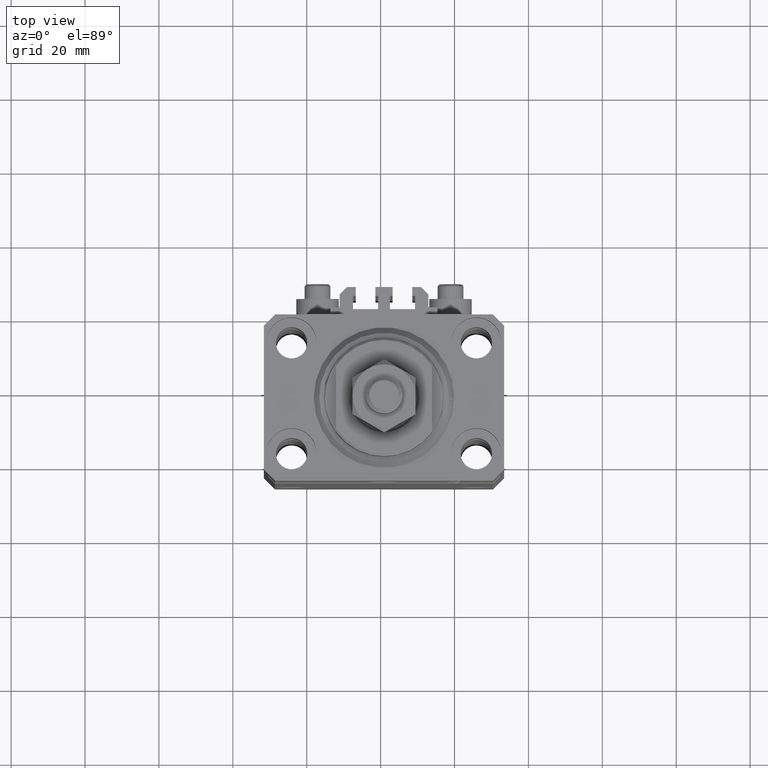
[diagram: clean part render]
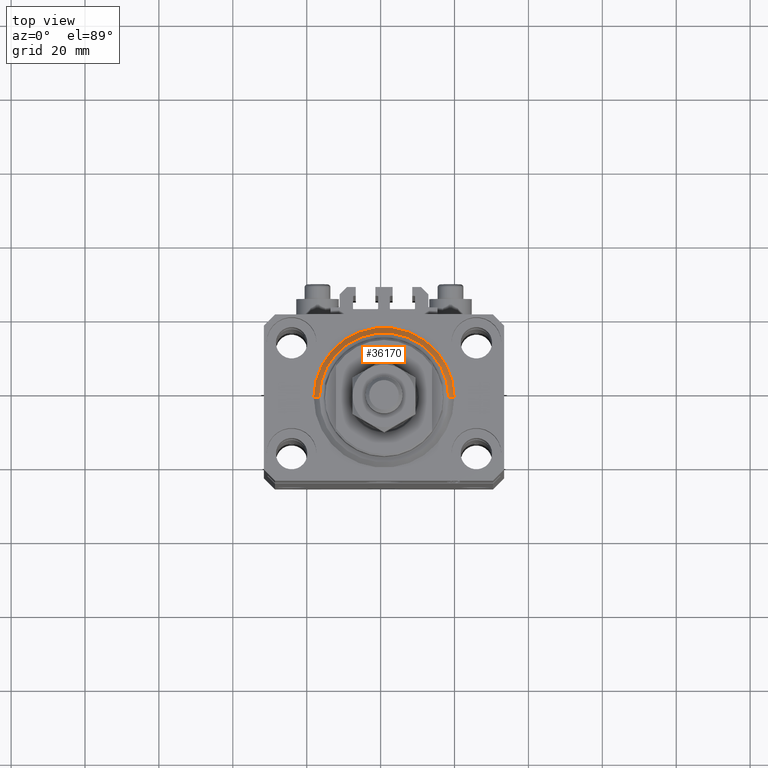
[diagram: same view with one face highlighted and labeled with its STEP entity id]
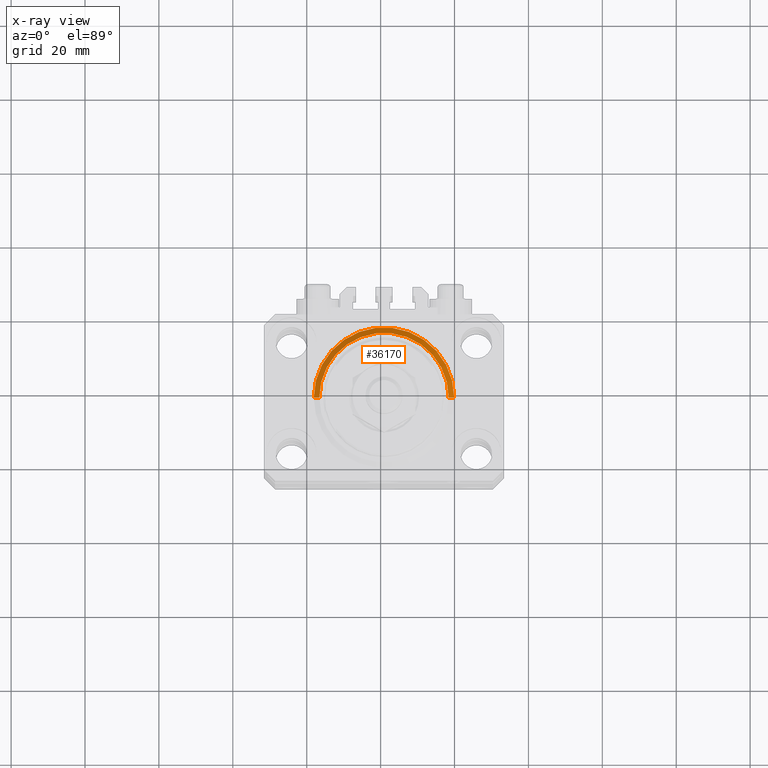
[diagram: x-ray of the same camera — body ghosted, the highlighted face saturated]
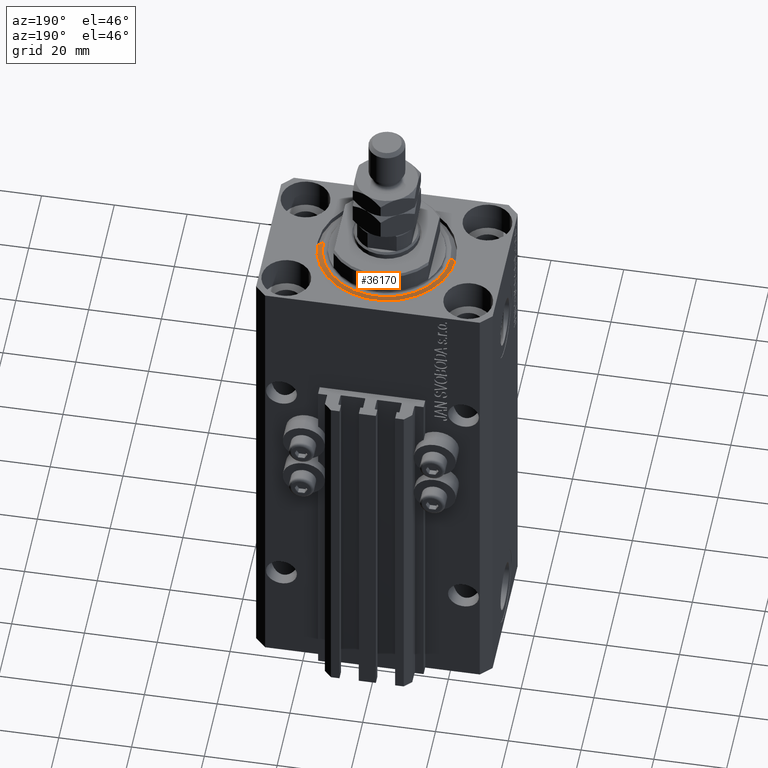
[diagram: same view with one face highlighted and labeled with its STEP entity id]
A machine part, top view. The second image highlights one B-rep face of the part: STEP entity #36170.
The next image is the same camera in x-ray: the body ghosted, the highlighted face saturated — about 0% of this face is hidden behind the body in this view.
A second angle (auxiliary view) of the same face is appended — the face is thin or edge-on in the first view.
In plain terms, the highlighted conical surface has half-angle 45 deg.
Its self-contained STEP definition (entity closure, byte-faithful):
#1157 = CARTESIAN_POINT ( 'NONE',  ( -17.49999999999999289, 2.234980408443919215E-15, 0.000000000000000000 ) ) ;
#1308 = AXIS2_PLACEMENT_3D ( 'NONE', #1404, #47979, #21549 ) ;
#1394 = CARTESIAN_POINT ( 'NONE',  ( 19.00000000000000000, 2.326828918379970970E-15, 1.500000000000004885 ) ) ;
#1404 = CARTESIAN_POINT ( 'NONE',  ( 0.000000000000000000, 0.000000000000000000, 1.500000000000004885 ) ) ;
#7493 = VERTEX_POINT ( 'NONE', #1157 ) ;
#7576 = VECTOR ( 'NONE', #18408, 1000.000000000000000 ) ;
#8451 = CIRCLE ( 'NONE', #43024, 17.49999999999999289 ) ;
#8600 = CARTESIAN_POINT ( 'NONE',  ( 17.49999999999999289, 0.000000000000000000, 0.000000000000000000 ) ) ;
#10811 = EDGE_CURVE ( 'NONE', #25104, #26211, #37685, .T. ) ;
#11940 = DIRECTION ( 'NONE',  ( -0.7071067811865483499, 8.659560562354943952E-17, 0.7071067811865467956 ) ) ;
#14363 = DIRECTION ( 'NONE',  ( 1.000000000000000000, 0.000000000000000000, 0.000000000000000000 ) ) ;
#17273 = FACE_OUTER_BOUND ( 'NONE', #42608, .T. ) ;
#18408 = DIRECTION ( 'NONE',  ( 0.7071067811865483499, 0.000000000000000000, 0.7071067811865467956 ) ) ;
#21549 = DIRECTION ( 'NONE',  ( 1.000000000000000000, 0.000000000000000000, 0.000000000000000000 ) ) ;
#22556 = CARTESIAN_POINT ( 'NONE',  ( -19.00000000000000000, 0.000000000000000000, 1.500000000000004885 ) ) ;
#23301 = CARTESIAN_POINT ( 'NONE',  ( -19.00000000000000000, 2.326828918379970970E-15, 1.500000000000004885 ) ) ;
#23644 = VECTOR ( 'NONE', #11940, 1000.000000000000000 ) ;
#23696 = ORIENTED_EDGE ( 'NONE', *, *, #26781, .F. ) ;
#23960 = DIRECTION ( 'NONE',  ( 1.000000000000000000, 0.000000000000000000, 0.000000000000000000 ) ) ;
#24213 = CARTESIAN_POINT ( 'NONE',  ( 0.000000000000000000, 0.000000000000000000, 1.500000000000004885 ) ) ;
#24642 = CONICAL_SURFACE ( 'NONE', #1308, 19.00000000000000000, 0.7853981633974492782 ) ;
#25104 = VERTEX_POINT ( 'NONE', #1394 ) ;
#25971 = DIRECTION ( 'NONE',  ( -0.000000000000000000, -0.000000000000000000, -1.000000000000000000 ) ) ;
#26211 = VERTEX_POINT ( 'NONE', #22556 ) ;
#26264 = EDGE_CURVE ( 'NONE', #7493, #26211, #31610, .T. ) ;
#26781 = EDGE_CURVE ( 'NONE', #49450, #25104, #30254, .T. ) ;
#29414 = EDGE_CURVE ( 'NONE', #7493, #49450, #8451, .T. ) ;
#30254 = LINE ( 'NONE', #41059, #7576 ) ;
#31610 = LINE ( 'NONE', #23301, #23644 ) ;
#33754 = ORIENTED_EDGE ( 'NONE', *, *, #26264, .T. ) ;
#36170 = ADVANCED_FACE ( 'NONE', ( #17273 ), #24642, .T. ) ;
#36277 = DIRECTION ( 'NONE',  ( -0.000000000000000000, -0.000000000000000000, 1.000000000000000000 ) ) ;
#37277 = CARTESIAN_POINT ( 'NONE',  ( 0.000000000000000000, 0.000000000000000000, 0.000000000000000000 ) ) ;
#37685 = CIRCLE ( 'NONE', #42505, 19.00000000000000000 ) ;
#41059 = CARTESIAN_POINT ( 'NONE',  ( 19.00000000000000000, 0.000000000000000000, 1.500000000000004885 ) ) ;
#42505 = AXIS2_PLACEMENT_3D ( 'NONE', #24213, #36277, #23960 ) ;
#42608 = EDGE_LOOP ( 'NONE', ( #45144, #33754, #44801, #23696 ) ) ;
#43024 = AXIS2_PLACEMENT_3D ( 'NONE', #37277, #25971, #14363 ) ;
#44801 = ORIENTED_EDGE ( 'NONE', *, *, #10811, .F. ) ;
#45144 = ORIENTED_EDGE ( 'NONE', *, *, #29414, .F. ) ;
#47979 = DIRECTION ( 'NONE',  ( -0.000000000000000000, -0.000000000000000000, 1.000000000000000000 ) ) ;
#49450 = VERTEX_POINT ( 'NONE', #8600 ) ;